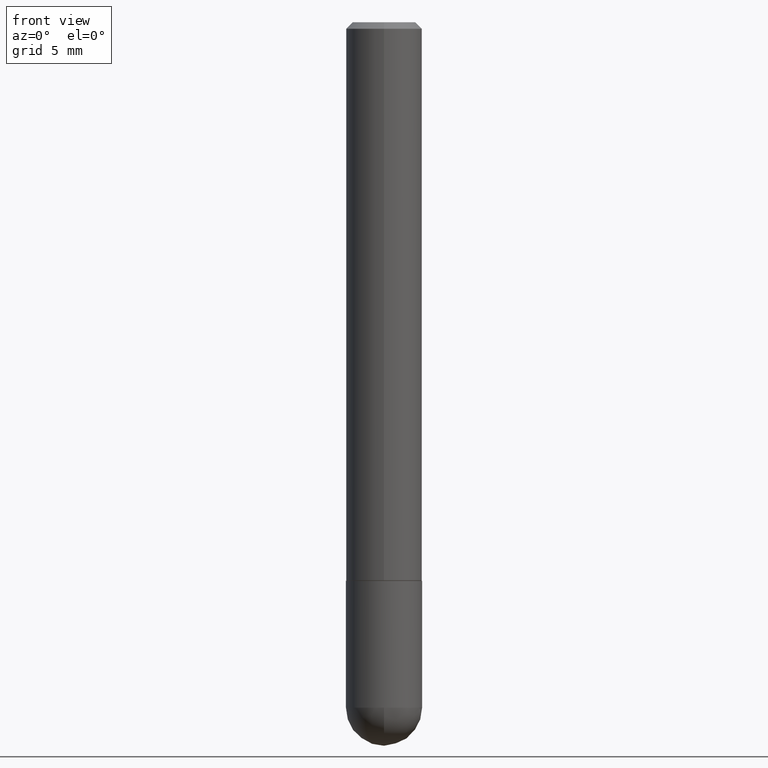
[diagram: clean part render]
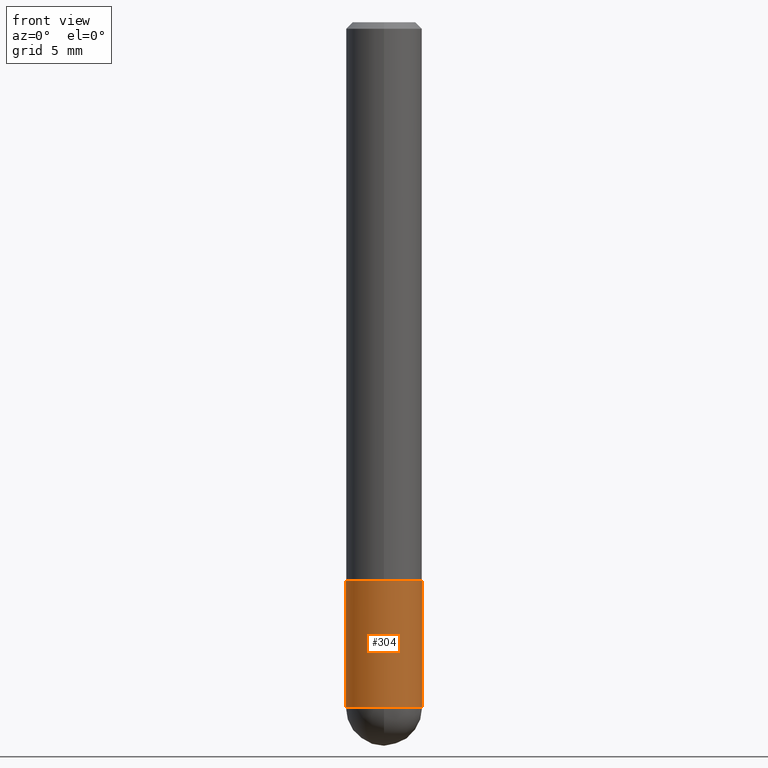
[diagram: same view with one face highlighted and labeled with its STEP entity id]
A machine part, front view. The second image highlights one B-rep face of the part: STEP entity #304.
In plain terms, the highlighted cylindrical surface (partial cylindrical patch) has radius 2.9997 mm, axis along (-0, 0, 1).
Its self-contained STEP definition (entity closure, byte-faithful):
#1 = VERTEX_POINT ( 'NONE', #303 ) ;
#2 = DIRECTION ( 'NONE',  ( -2.445468806185136597E-29, 3.491481338843145583E-15, 1.000000000000000000 ) ) ;
#10 = VECTOR ( 'NONE', #81, 39.37007874015748143 ) ;
#12 = EDGE_CURVE ( 'NONE', #335, #212, #366, .T. ) ;
#15 = CIRCLE ( 'NONE', #130, 0.1180999999999999966 ) ;
#23 = EDGE_LOOP ( 'NONE', ( #90, #154, #279, #88, #216 ) ) ;
#27 = CARTESIAN_POINT ( 'NONE',  ( -0.1180999999999999966, -5.896440253896576052E-15, -1.732299999999999951 ) ) ;
#32 = CYLINDRICAL_SURFACE ( 'NONE', #169, 0.1180999999999999966 ) ;
#36 = CARTESIAN_POINT ( 'NONE',  ( 4.236285612954512392E-29, -6.048293123277981078E-15, -1.732299999999999951 ) ) ;
#45 = AXIS2_PLACEMENT_3D ( 'NONE', #36, #281, #193 ) ;
#67 = CARTESIAN_POINT ( 'NONE',  ( 0.1180999999999999966, -6.872981015512729341E-15, -1.732299999999999951 ) ) ;
#74 = EDGE_CURVE ( 'NONE', #1, #282, #15, .T. ) ;
#81 = DIRECTION ( 'NONE',  ( -2.445468806185136877E-29, 3.491481338843145188E-15, 1.000000000000000000 ) ) ;
#88 = ORIENTED_EDGE ( 'NONE', *, *, #12, .T. ) ;
#90 = ORIENTED_EDGE ( 'NONE', *, *, #218, .F. ) ;
#99 = CIRCLE ( 'NONE', #268, 0.1180999999999999966 ) ;
#128 = DIRECTION ( 'NONE',  ( 1.000000000000000000, -6.982962677686265133E-15, 0.000000000000000000 ) ) ;
#130 = AXIS2_PLACEMENT_3D ( 'NONE', #133, #358, #144 ) ;
#131 = CARTESIAN_POINT ( 'NONE',  ( 5.199066681949599750E-29, -7.422889326380526631E-15, -2.125999999999999890 ) ) ;
#132 = CARTESIAN_POINT ( 'NONE',  ( -0.1180999999999999966, 8.391509709326782957E-16, -5.809262341591043784E-30 ) ) ;
#133 = CARTESIAN_POINT ( 'NONE',  ( 5.199066681949599750E-29, -7.422889326380526631E-15, -2.125999999999999890 ) ) ;
#144 = DIRECTION ( 'NONE',  ( 1.000000000000000000, -6.982962677686265133E-15, 0.000000000000000000 ) ) ;
#150 = CARTESIAN_POINT ( 'NONE',  ( 0.1180999999999999966, -8.246878922347480654E-16, 5.758764772215000440E-30 ) ) ;
#154 = ORIENTED_EDGE ( 'NONE', *, *, #74, .T. ) ;
#158 = LINE ( 'NONE', #132, #398 ) ;
#169 = AXIS2_PLACEMENT_3D ( 'NONE', #288, #2, #346 ) ;
#191 = CARTESIAN_POINT ( 'NONE',  ( 0.1180999999999999966, -7.560279117064003300E-15, -2.125999999999999890 ) ) ;
#193 = DIRECTION ( 'NONE',  ( 1.000000000000000000, -6.982962677686265133E-15, 0.000000000000000000 ) ) ;
#198 = DIRECTION ( 'NONE',  ( -2.445468806185136597E-29, 3.491481338843145583E-15, 1.000000000000000000 ) ) ;
#210 = CIRCLE ( 'NONE', #45, 0.1180999999999999966 ) ;
#212 = VERTEX_POINT ( 'NONE', #67 ) ;
#216 = ORIENTED_EDGE ( 'NONE', *, *, #244, .F. ) ;
#218 = EDGE_CURVE ( 'NONE', #1, #340, #158, .T. ) ;
#221 = FACE_OUTER_BOUND ( 'NONE', #23, .T. ) ;
#225 = CARTESIAN_POINT ( 'NONE',  ( -8.391509709326287947E-16, -0.1181000000000077821, -2.125999999999999446 ) ) ;
#244 = EDGE_CURVE ( 'NONE', #340, #212, #210, .T. ) ;
#254 = EDGE_CURVE ( 'NONE', #282, #335, #99, .T. ) ;
#268 = AXIS2_PLACEMENT_3D ( 'NONE', #131, #198, #128 ) ;
#279 = ORIENTED_EDGE ( 'NONE', *, *, #254, .T. ) ;
#281 = DIRECTION ( 'NONE',  ( -2.445468806185136597E-29, 3.491481338843145583E-15, 1.000000000000000000 ) ) ;
#282 = VERTEX_POINT ( 'NONE', #225 ) ;
#288 = CARTESIAN_POINT ( 'NONE',  ( 0.000000000000000000, 0.000000000000000000, 0.000000000000000000 ) ) ;
#303 = CARTESIAN_POINT ( 'NONE',  ( -0.1180999999999999966, -5.896440253896576841E-15, -2.125999999999999890 ) ) ;
#304 = ADVANCED_FACE ( 'NONE', ( #221 ), #32, .T. ) ;
#335 = VERTEX_POINT ( 'NONE', #191 ) ;
#340 = VERTEX_POINT ( 'NONE', #27 ) ;
#346 = DIRECTION ( 'NONE',  ( 1.000000000000000000, -6.982962677686266711E-15, 4.876176775795936353E-29 ) ) ;
#358 = DIRECTION ( 'NONE',  ( -2.445468806185136597E-29, 3.491481338843145583E-15, 1.000000000000000000 ) ) ;
#366 = LINE ( 'NONE', #150, #10 ) ;
#377 = DIRECTION ( 'NONE',  ( -2.445468806185136877E-29, 3.491481338843145188E-15, 1.000000000000000000 ) ) ;
#398 = VECTOR ( 'NONE', #377, 39.37007874015748143 ) ;